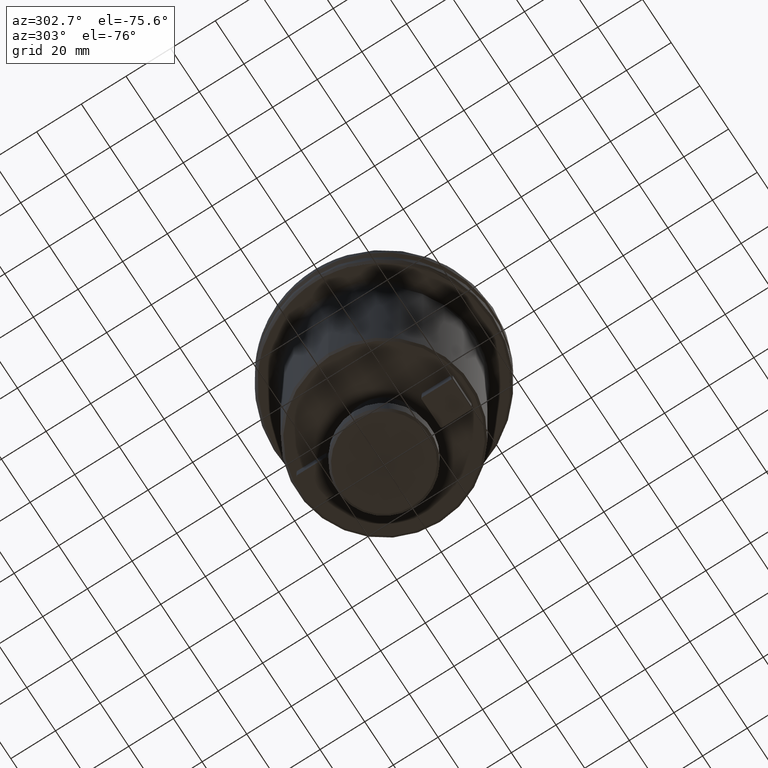
[diagram: clean part render]
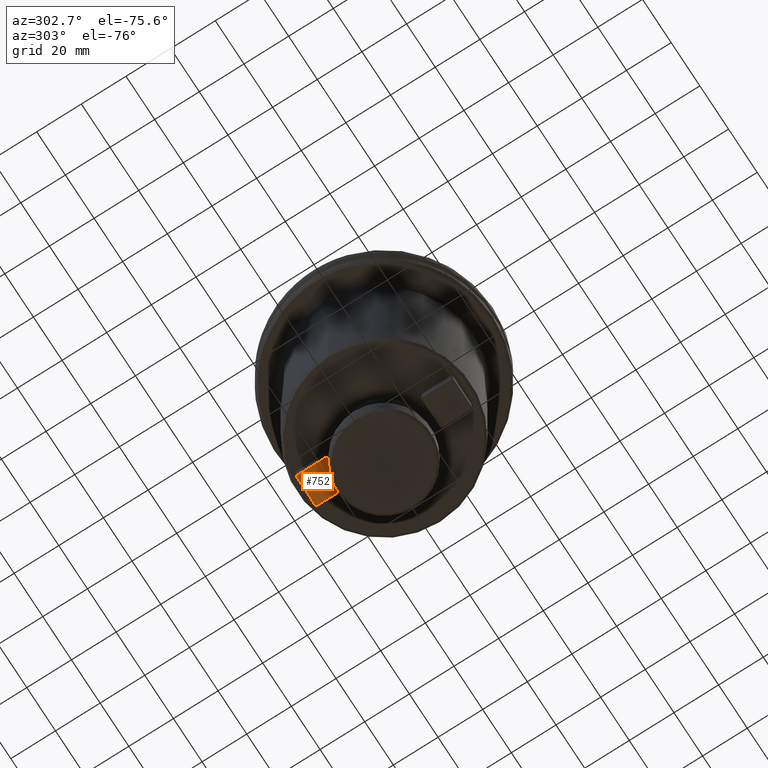
[diagram: same view with one face highlighted and labeled with its STEP entity id]
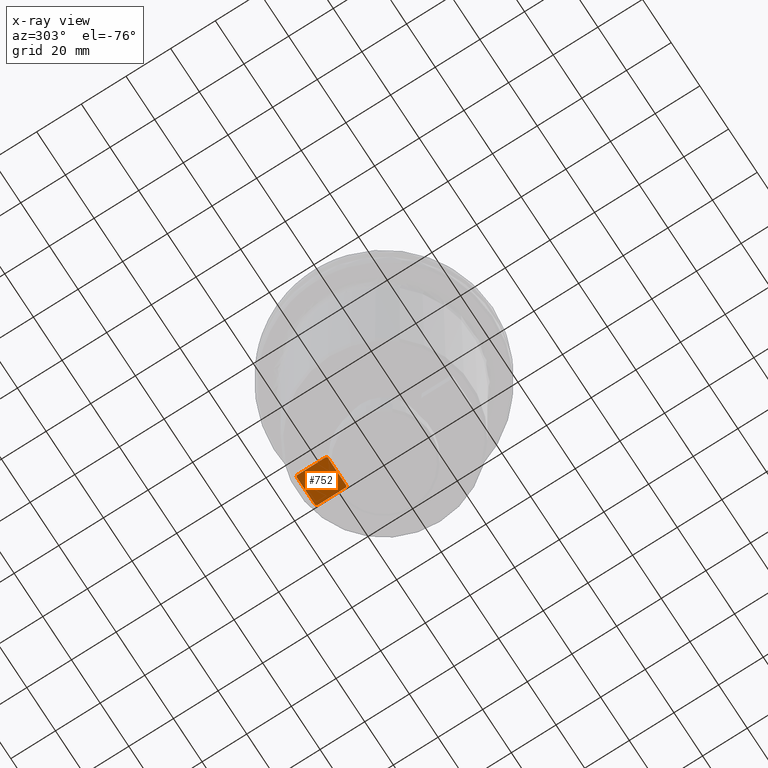
[diagram: x-ray of the same camera — body ghosted, the highlighted face saturated]
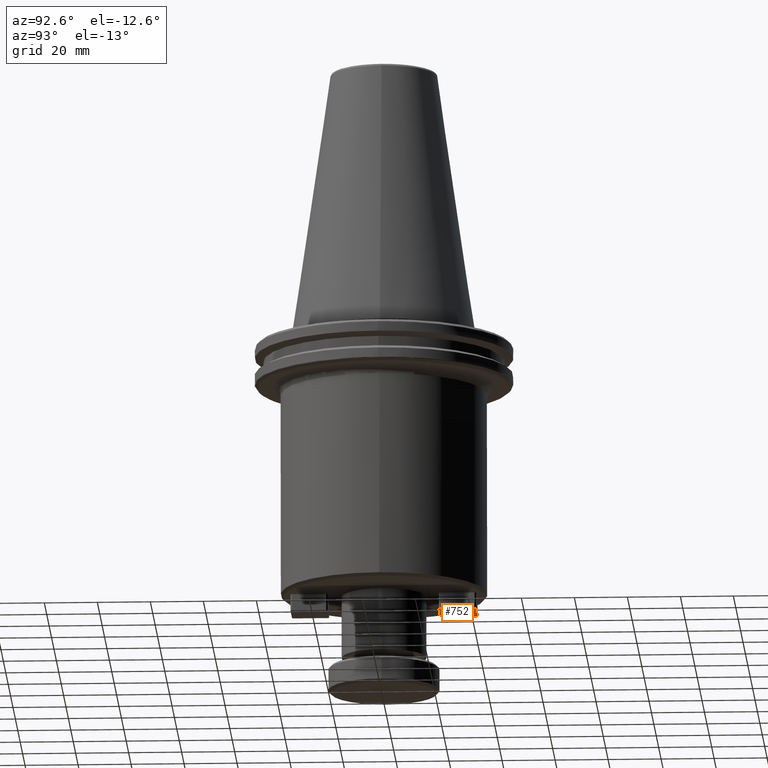
[diagram: same view with one face highlighted and labeled with its STEP entity id]
A machine part, auxiliary view. The second image highlights one B-rep face of the part: STEP entity #752.
The next image is the same camera in x-ray: the body ghosted, the highlighted face saturated — about 0% of this face is hidden behind the body in this view.
A second angle (auxiliary view) of the same face is appended — the face is thin or edge-on in the first view.
In plain terms, the highlighted planar face has unit normal (0, 0, -1).
Its self-contained STEP definition (entity closure, byte-faithful):
#30 = LINE ( 'NONE', #2840, #64 ) ;
#64 = VECTOR ( 'NONE', #2069, 1000.000000000000000 ) ;
#96 = CARTESIAN_POINT ( 'NONE',  ( 6.999999999999993800, 21.50000000000000400, -106.2500000000000100 ) ) ;
#100 = DIRECTION ( 'NONE',  ( -0.7071067811865420200, -0.7071067811865531200, 0.0000000000000000000 ) ) ;
#189 = CARTESIAN_POINT ( 'NONE',  ( 6.999999999999992000, 21.00000000000000000, -106.2500000000000100 ) ) ;
#217 = DIRECTION ( 'NONE',  ( 0.0000000000000000000, 0.0000000000000000000, -1.000000000000000000 ) ) ;
#320 = CARTESIAN_POINT ( 'NONE',  ( -6.500000000000016000, 35.00000000000000000, -106.2500000000000100 ) ) ;
#351 = DIRECTION ( 'NONE',  ( 0.7071067811865474600, 0.7071067811865474600, 0.0000000000000000000 ) ) ;
#355 = EDGE_CURVE ( 'NONE', #3512, #1912, #1809, .T. ) ;
#414 = EDGE_CURVE ( 'NONE', #4013, #4408, #3464, .T. ) ;
#446 = EDGE_CURVE ( 'NONE', #4408, #2609, #30, .T. ) ;
#477 = VECTOR ( 'NONE', #573, 1000.000000000000000 ) ;
#573 = DIRECTION ( 'NONE',  ( -1.000000000000000000, -0.0000000000000000000, 0.0000000000000000000 ) ) ;
#752 = ADVANCED_FACE ( 'NONE', ( #772 ), #3010, .T. ) ;
#772 = FACE_OUTER_BOUND ( 'NONE', #3824, .T. ) ;
#776 = DIRECTION ( 'NONE',  ( -0.7071067811865443500, 0.7071067811865506800, 0.0000000000000000000 ) ) ;
#882 = ORIENTED_EDGE ( 'NONE', *, *, #1729, .T. ) ;
#1253 = ORIENTED_EDGE ( 'NONE', *, *, #414, .T. ) ;
#1289 = CARTESIAN_POINT ( 'NONE',  ( -6.999999999999995600, 35.00000000000000000, -106.2500000000000100 ) ) ;
#1311 = EDGE_CURVE ( 'NONE', #3313, #1699, #1977, .T. ) ;
#1655 = CARTESIAN_POINT ( 'NONE',  ( -6.499999999999968000, 21.00000000000000400, -106.2500000000000100 ) ) ;
#1699 = VERTEX_POINT ( 'NONE', #4234 ) ;
#1713 = CARTESIAN_POINT ( 'NONE',  ( -6.500000000000023100, 35.00000000000000000, -106.2500000000000100 ) ) ;
#1724 = CARTESIAN_POINT ( 'NONE',  ( 6.499999999999998200, 21.00000000000000400, -106.2500000000000100 ) ) ;
#1729 = EDGE_CURVE ( 'NONE', #2609, #3313, #2924, .T. ) ;
#1744 = VECTOR ( 'NONE', #2457, 1000.000000000000000 ) ;
#1769 = CARTESIAN_POINT ( 'NONE',  ( 6.499999999999960900, 35.00000000000000000, -106.2500000000000100 ) ) ;
#1809 = LINE ( 'NONE', #189, #477 ) ;
#1834 = CARTESIAN_POINT ( 'NONE',  ( 6.999999999999995600, 34.49999999999997200, -106.2500000000000100 ) ) ;
#1839 = VECTOR ( 'NONE', #776, 1000.000000000000100 ) ;
#1912 = VERTEX_POINT ( 'NONE', #1655 ) ;
#1977 = LINE ( 'NONE', #3845, #1744 ) ;
#2016 = DIRECTION ( 'NONE',  ( 0.0000000000000000000, 1.000000000000000000, 0.0000000000000000000 ) ) ;
#2069 = DIRECTION ( 'NONE',  ( 1.000000000000000000, 0.0000000000000000000, 0.0000000000000000000 ) ) ;
#2181 = EDGE_CURVE ( 'NONE', #1699, #3512, #4005, .T. ) ;
#2287 = CARTESIAN_POINT ( 'NONE',  ( 0.0000000000000000000, 0.0000000000000000000, -106.2500000000000100 ) ) ;
#2296 = ORIENTED_EDGE ( 'NONE', *, *, #2886, .T. ) ;
#2416 = VECTOR ( 'NONE', #3467, 1000.000000000000000 ) ;
#2457 = DIRECTION ( 'NONE',  ( -2.478176394252581100E-016, -1.000000000000000000, 0.0000000000000000000 ) ) ;
#2525 = ORIENTED_EDGE ( 'NONE', *, *, #355, .T. ) ;
#2593 = AXIS2_PLACEMENT_3D ( 'NONE', #2287, #217, #2662 ) ;
#2609 = VERTEX_POINT ( 'NONE', #1769 ) ;
#2610 = VECTOR ( 'NONE', #351, 1000.000000000000100 ) ;
#2662 = DIRECTION ( 'NONE',  ( -1.000000000000000000, 0.0000000000000000000, -0.0000000000000000000 ) ) ;
#2707 = ORIENTED_EDGE ( 'NONE', *, *, #2181, .T. ) ;
#2840 = CARTESIAN_POINT ( 'NONE',  ( 6.999999999999995600, 35.00000000000000000, -106.2500000000000100 ) ) ;
#2886 = EDGE_CURVE ( 'NONE', #4152, #4013, #3238, .T. ) ;
#2894 = CARTESIAN_POINT ( 'NONE',  ( -6.499999999999968900, 21.00000000000000400, -106.2500000000000100 ) ) ;
#2924 = LINE ( 'NONE', #3506, #2416 ) ;
#2974 = VECTOR ( 'NONE', #2016, 1000.000000000000000 ) ;
#3010 = PLANE ( 'NONE',  #2593 ) ;
#3223 = CARTESIAN_POINT ( 'NONE',  ( -6.999999999999995600, 34.50000000000002800, -106.2500000000000100 ) ) ;
#3238 = LINE ( 'NONE', #1289, #2974 ) ;
#3242 = EDGE_CURVE ( 'NONE', #1912, #4152, #4186, .T. ) ;
#3313 = VERTEX_POINT ( 'NONE', #1834 ) ;
#3351 = ORIENTED_EDGE ( 'NONE', *, *, #3242, .T. ) ;
#3464 = LINE ( 'NONE', #1713, #2610 ) ;
#3467 = DIRECTION ( 'NONE',  ( 0.7071067811865566800, -0.7071067811865383600, 0.0000000000000000000 ) ) ;
#3506 = CARTESIAN_POINT ( 'NONE',  ( 6.499999999999953800, 35.00000000000000000, -106.2500000000000100 ) ) ;
#3512 = VERTEX_POINT ( 'NONE', #1724 ) ;
#3612 = ORIENTED_EDGE ( 'NONE', *, *, #1311, .T. ) ;
#3689 = CARTESIAN_POINT ( 'NONE',  ( -7.000000000000000000, 21.50000000000003200, -106.2500000000000100 ) ) ;
#3824 = EDGE_LOOP ( 'NONE', ( #2525, #3351, #2296, #1253, #4419, #882, #3612, #2707 ) ) ;
#3845 = CARTESIAN_POINT ( 'NONE',  ( 6.999999999999995600, 35.00000000000000000, -106.2500000000000100 ) ) ;
#4005 = LINE ( 'NONE', #96, #4220 ) ;
#4013 = VERTEX_POINT ( 'NONE', #3223 ) ;
#4152 = VERTEX_POINT ( 'NONE', #3689 ) ;
#4186 = LINE ( 'NONE', #2894, #1839 ) ;
#4220 = VECTOR ( 'NONE', #100, 999.9999999999998900 ) ;
#4234 = CARTESIAN_POINT ( 'NONE',  ( 6.999999999999992900, 21.50000000000000400, -106.2500000000000100 ) ) ;
#4408 = VERTEX_POINT ( 'NONE', #320 ) ;
#4419 = ORIENTED_EDGE ( 'NONE', *, *, #446, .T. ) ;